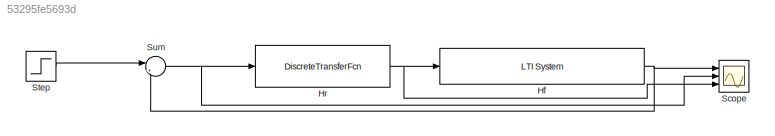
MODEL slx_53295fe5693d
KIND model
CONFIG AbsTol = auto
CONFIG EnableMultiTasking = off
CONFIG FixedStep = auto
CONFIG MaxStep = auto
CONFIG MinStep = auto
CONFIG RelTol = 1e-3
CONFIG SampleTimeConstraint = Unconstrained
CONFIG Solver = VariableStepAuto
CONFIG SolverName = VariableStepAuto
CONFIG StartTime = 0.0
CONFIG StopTime = 500
BLOCK [Reference] Hf  REF=cstblocks/LTI System
  Ports = [1, 1]
  SourceBlock = cstblocks/LTI System
  SourceProductBaseCode = CT
  SourceProductName = Control System Toolbox
  SourceType = LTI Block
BLOCK [DiscreteTransferFcn] Hr
  Denominator = [1 -1]
  InputPortMap = u0
  Numerator = [0.9455 -0.9199]
  Ports = [1, 1]
  SampleTime = 1
BLOCK [Scope] Scope
  Floating = off
  NumInputPorts = 3
  Ports = [3]
  ScopeSpecificationString = Simulink.scopes.TimeScopeBlockCfg('CurrentConfiguration', extmgr.ConfigurationSet(extmgr.Configuration('Core','General UI',true),extmgr.Configuration('Core','Source UI',true),extmgr.Configuration('Sources','WiredSimulink',true),extmgr.Configuration('Visuals','Time Domain',true,'SerializedDisplays',{struct('MinYLimReal','-0.26561','MaxYLimReal','2.23144','YLabelReal','','MinYLimMag','0.00000','MaxY...<+1492ch>
BLOCK [Step] Step
  SampleTime = 0
  Time = 0
BLOCK [Sum] Sum
  IconShape = round
  InputSameDT = off
  Inputs = |+-
  OutDataTypeStr = Inherit: Inherit via internal rule
  Ports = [2, 1]
  SaturateOnIntegerOverflow = off
NET Hf:1 -> Scope:1, Sum:2
NET Hr:1 -> Hf:1, Scope:3
LINE Step:1 -> Sum:1
NET Sum:1 -> Hr:1, Scope:2
note: NET lines group one-source signal fan-out (src -> all destinations, sorted); 1:1 wires keep LINE
